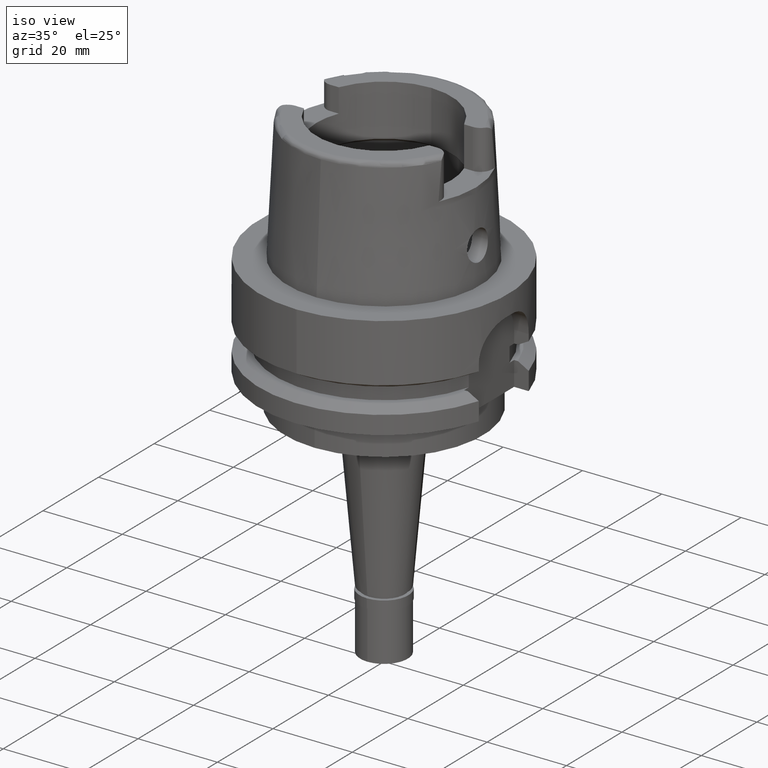
[diagram: clean part render]
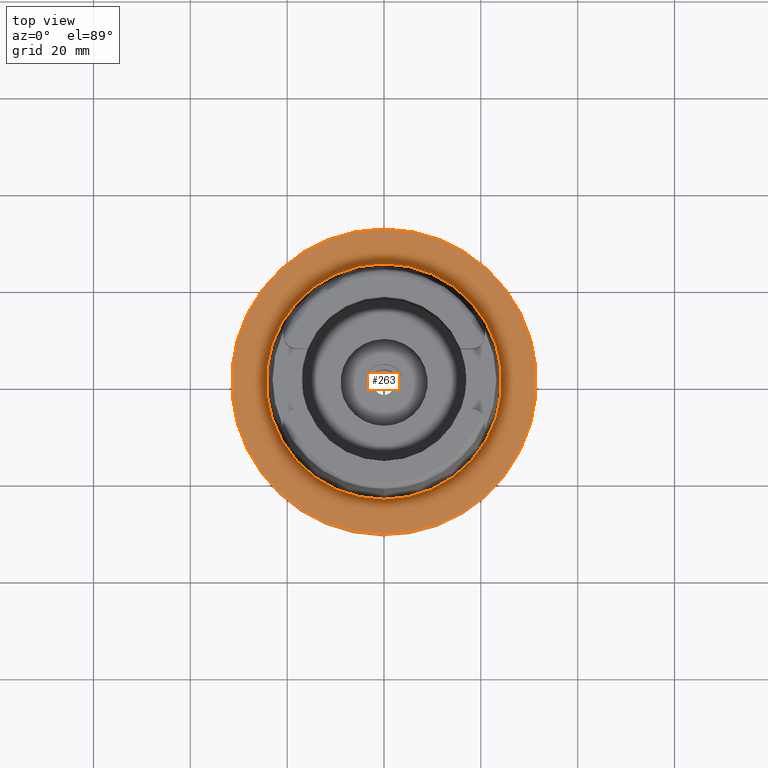
[diagram: tour spotlight — one face highlighted and labeled with its STEP entity id]
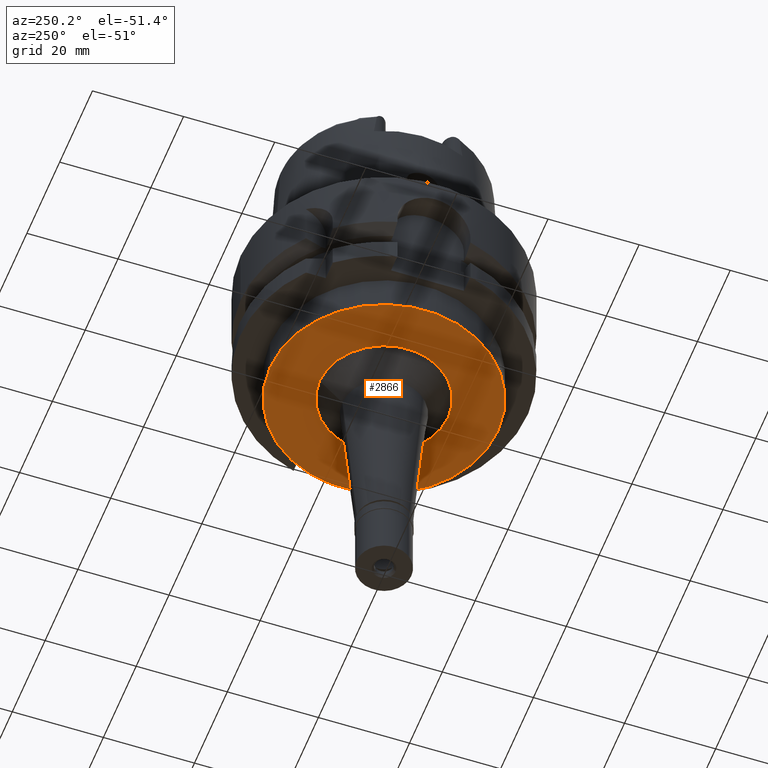
[diagram: tour spotlight — one face highlighted and labeled with its STEP entity id]
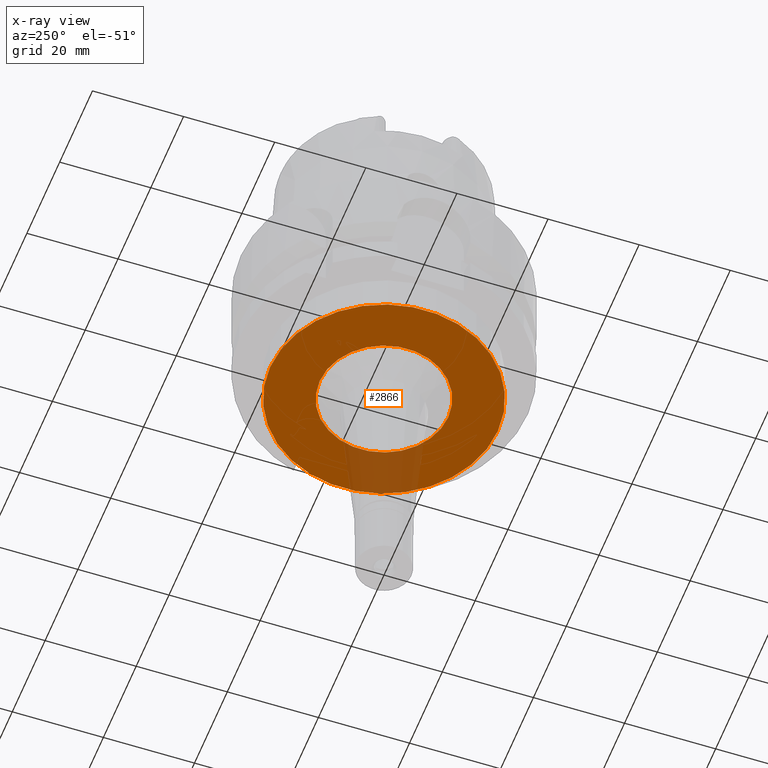
[diagram: x-ray of the same camera — body ghosted, this tour face saturated]
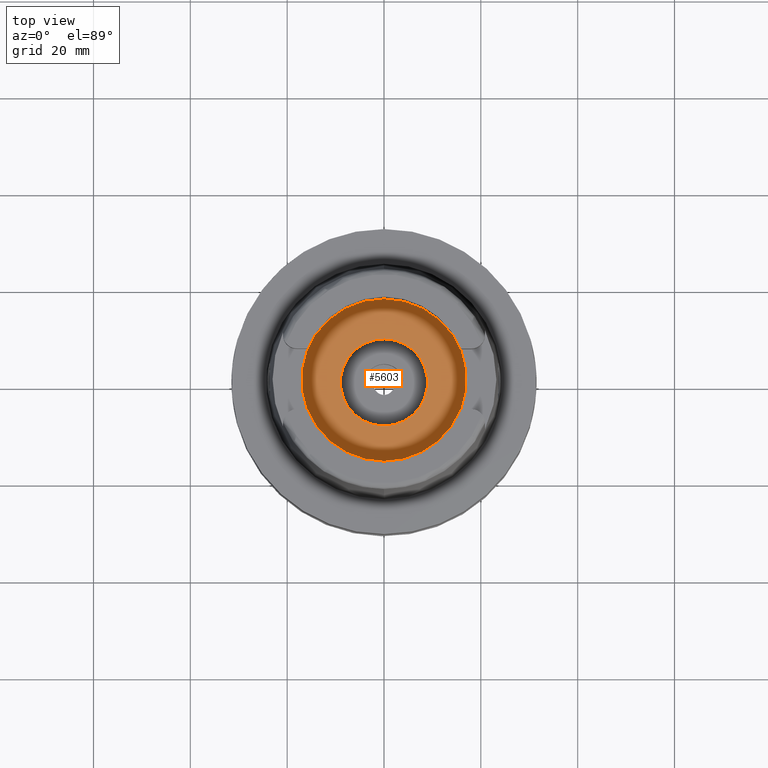
[diagram: tour spotlight — one face highlighted and labeled with its STEP entity id]
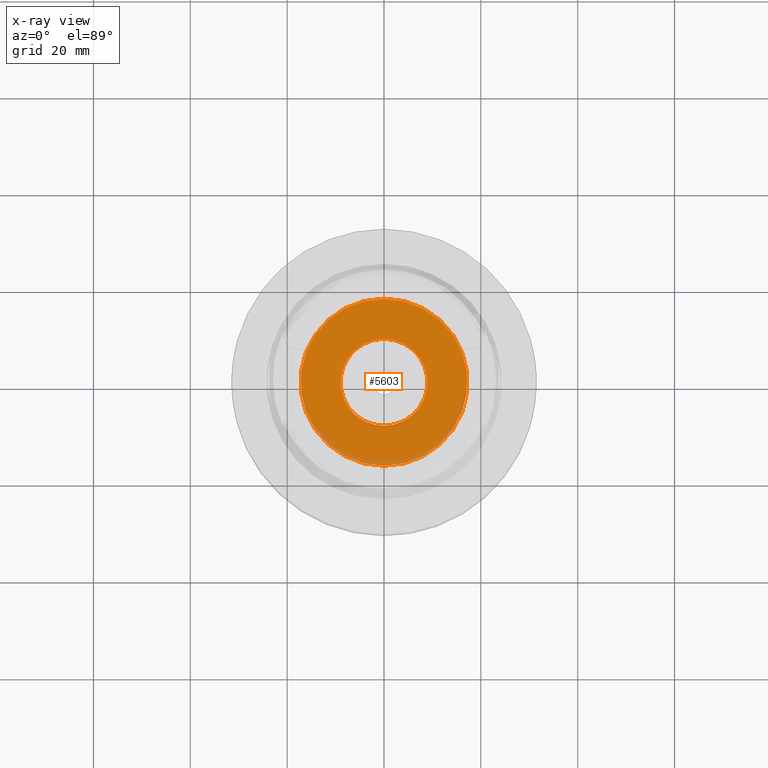
[diagram: x-ray of the same camera — body ghosted, this tour face saturated]
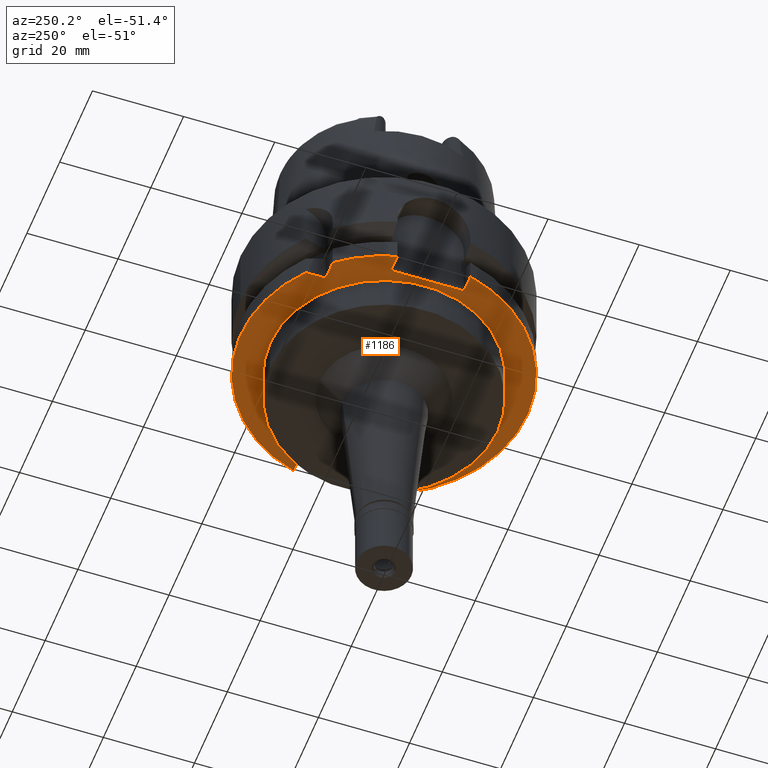
[diagram: tour spotlight — one face highlighted and labeled with its STEP entity id]
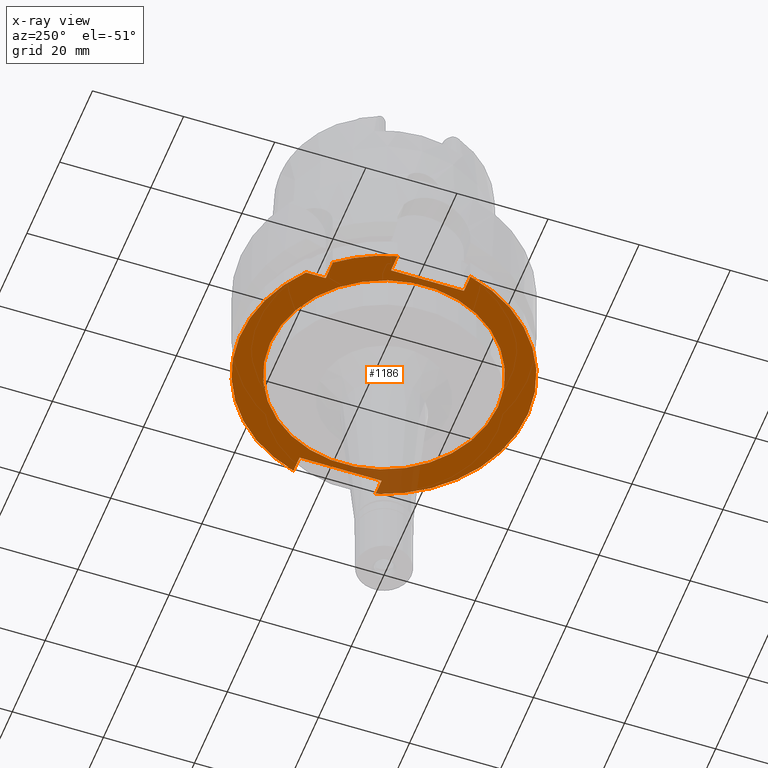
[diagram: x-ray of the same camera — body ghosted, this tour face saturated]
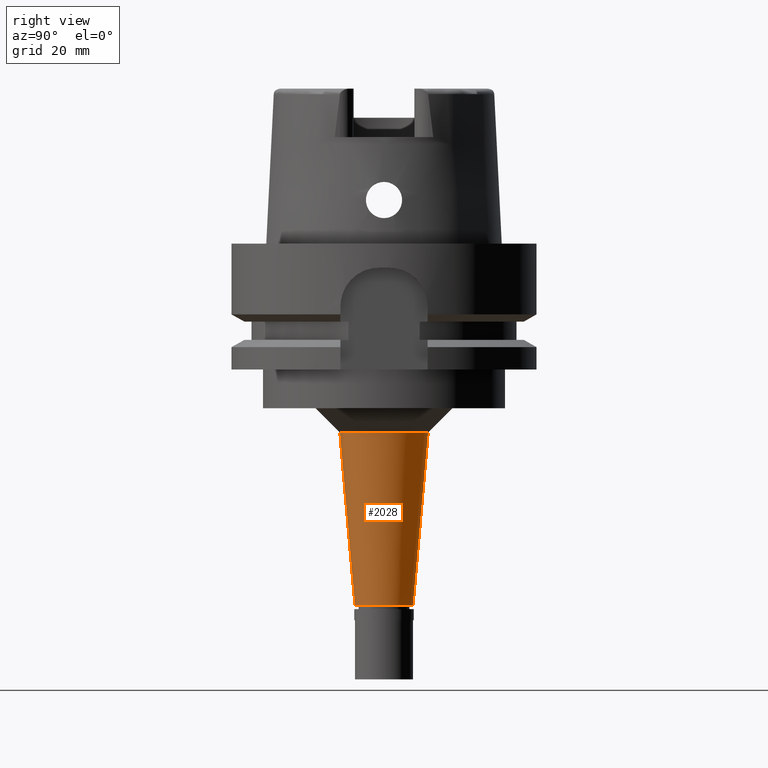
[diagram: tour spotlight — one face highlighted and labeled with its STEP entity id]
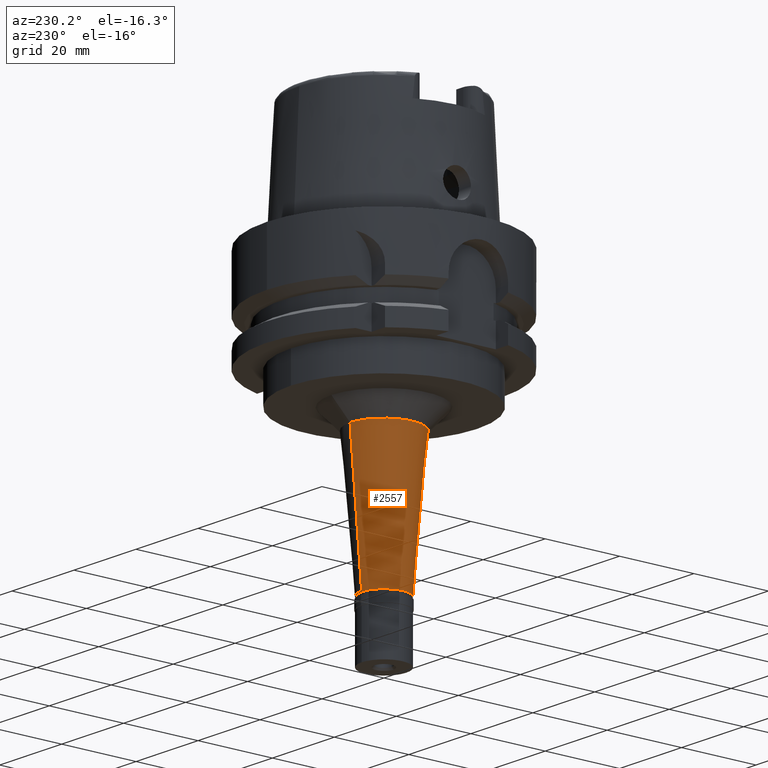
[diagram: tour spotlight — one face highlighted and labeled with its STEP entity id]
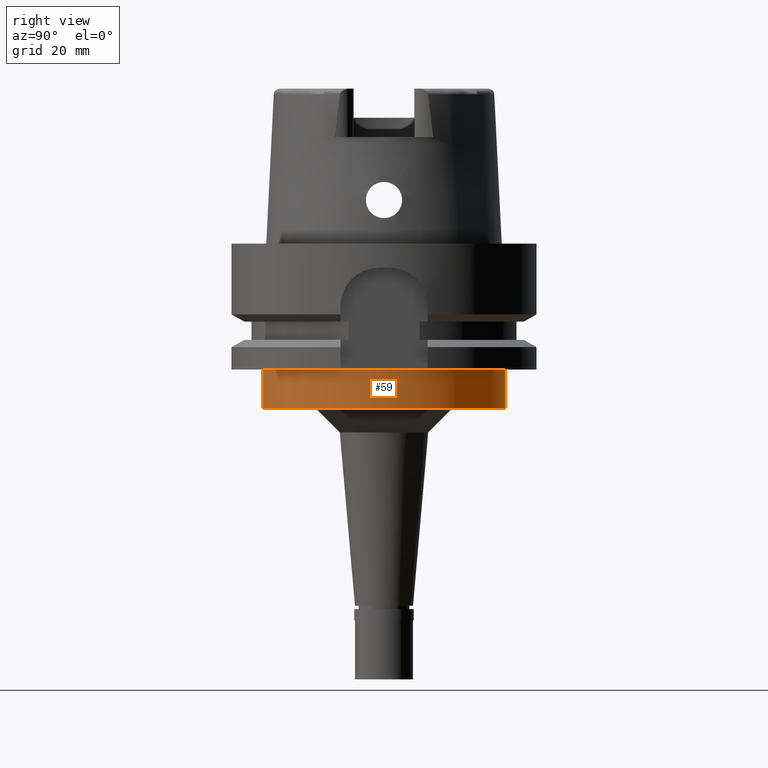
[diagram: tour spotlight — one face highlighted and labeled with its STEP entity id]
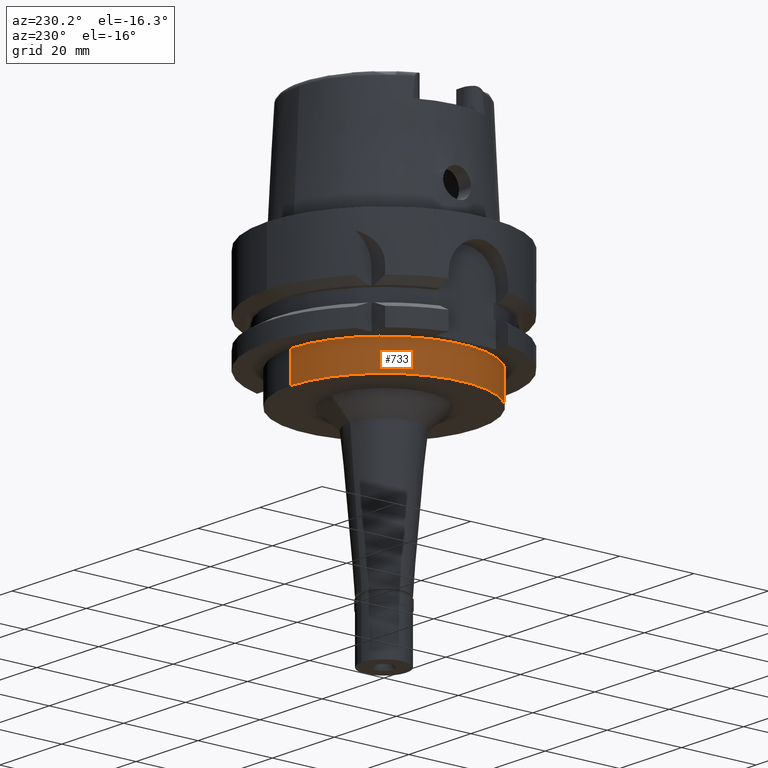
[diagram: tour spotlight — one face highlighted and labeled with its STEP entity id]
A machine part: a face-by-face anatomy tour. The part has 125 B-rep faces; the first image is the clean iso view, then the 8 largest visible faces are spotlighted one at a time (largest first), each with its STEP entity span.

Face 1 — top view, entity #263. In plain terms, the highlighted planar face has unit normal (0, 0, -1).
Definition (entity closure, byte-faithful):
#251 = ORIENTED_EDGE ( 'NONE', *, *, #5136, .F. ) ;
#263 = ADVANCED_FACE ( 'NONE', ( #5537, #4290 ), #4265, .F. ) ;
#298 = VERTEX_POINT ( 'NONE', #5626 ) ;
#458 = DIRECTION ( 'NONE',  ( 0.0000000000000000000, 0.0000000000000000000, 1.000000000000000000 ) ) ;
#484 = VERTEX_POINT ( 'NONE', #2036 ) ;
#1069 = CARTESIAN_POINT ( 'NONE',  ( 0.0000000000000000000, 1.688787936023999784E-14, -8.526512829120999020E-14 ) ) ;
#1080 = CARTESIAN_POINT ( 'NONE',  ( 0.0000000000000000000, 1.688787936023999784E-14, -8.526512829120999020E-14 ) ) ;
#1101 = EDGE_LOOP ( 'NONE', ( #3705, #251 ) ) ;
#1191 = EDGE_CURVE ( 'NONE', #5079, #2755, #2627, .T. ) ;
#1198 = CARTESIAN_POINT ( 'NONE',  ( 0.0000000000000000000, 1.413609354011999823E-14, 1.136868377215999875E-13 ) ) ;
#1364 = CARTESIAN_POINT ( 'NONE',  ( 0.0000000000000000000, 1.413609354011999823E-14, 1.136868377215999875E-13 ) ) ;
#1563 = CIRCLE ( 'NONE', #2388, 31.50000000000000000 ) ;
#1670 = AXIS2_PLACEMENT_3D ( 'NONE', #1080, #2820, #2386 ) ;
#1888 = CARTESIAN_POINT ( 'NONE',  ( 0.0000000000000000000, 24.31503482328999866, 1.136868377215999875E-13 ) ) ;
#1941 = CIRCLE ( 'NONE', #3035, 24.31503482328999866 ) ;
#2036 = CARTESIAN_POINT ( 'NONE',  ( 0.0000000000000000000, 31.50000000000000000, -8.526512829120999020E-14 ) ) ;
#2119 = CARTESIAN_POINT ( 'NONE',  ( 0.0000000000000000000, 1.224646799146999965E-14, 0.0000000000000000000 ) ) ;
#2386 = DIRECTION ( 'NONE',  ( 0.0000000000000000000, 1.000000000000000000, 0.0000000000000000000 ) ) ;
#2388 = AXIS2_PLACEMENT_3D ( 'NONE', #1069, #2436, #4152 ) ;
#2432 = AXIS2_PLACEMENT_3D ( 'NONE', #2119, #4204, #3782 ) ;
#2436 = DIRECTION ( 'NONE',  ( 0.0000000000000000000, 0.0000000000000000000, -1.000000000000000000 ) ) ;
#2461 = CARTESIAN_POINT ( 'NONE',  ( 0.0000000000000000000, -24.31503482328999866, 1.882938249763999678E-13 ) ) ;
#2627 = CIRCLE ( 'NONE', #3259, 24.31503482328999866 ) ;
#2680 = CIRCLE ( 'NONE', #1670, 31.50000000000000000 ) ;
#2755 = VERTEX_POINT ( 'NONE', #1888 ) ;
#2820 = DIRECTION ( 'NONE',  ( 0.0000000000000000000, 0.0000000000000000000, -1.000000000000000000 ) ) ;
#3035 = AXIS2_PLACEMENT_3D ( 'NONE', #1198, #3893, #3832 ) ;
#3255 = EDGE_CURVE ( 'NONE', #2755, #5079, #1941, .T. ) ;
#3259 = AXIS2_PLACEMENT_3D ( 'NONE', #1364, #458, #4828 ) ;
#3273 = ORIENTED_EDGE ( 'NONE', *, *, #1191, .F. ) ;
#3387 = EDGE_CURVE ( 'NONE', #484, #298, #2680, .T. ) ;
#3469 = EDGE_LOOP ( 'NONE', ( #3563, #3273 ) ) ;
#3563 = ORIENTED_EDGE ( 'NONE', *, *, #3255, .F. ) ;
#3705 = ORIENTED_EDGE ( 'NONE', *, *, #3387, .F. ) ;
#3782 = DIRECTION ( 'NONE',  ( 0.0000000000000000000, -1.000000000000000000, 0.0000000000000000000 ) ) ;
#3832 = DIRECTION ( 'NONE',  ( 0.0000000000000000000, 1.000000000000000000, 0.0000000000000000000 ) ) ;
#3893 = DIRECTION ( 'NONE',  ( 0.0000000000000000000, 0.0000000000000000000, 1.000000000000000000 ) ) ;
#4152 = DIRECTION ( 'NONE',  ( 0.0000000000000000000, -1.000000000000000000, 0.0000000000000000000 ) ) ;
#4204 = DIRECTION ( 'NONE',  ( 0.0000000000000000000, 0.0000000000000000000, -1.000000000000000000 ) ) ;
#4265 = PLANE ( 'NONE',  #2432 ) ;
#4290 = FACE_BOUND ( 'NONE', #3469, .T. ) ;
#4828 = DIRECTION ( 'NONE',  ( 0.0000000000000000000, -1.000000000000000000, 0.0000000000000000000 ) ) ;
#5079 = VERTEX_POINT ( 'NONE', #2461 ) ;
#5136 = EDGE_CURVE ( 'NONE', #298, #484, #1563, .T. ) ;
#5537 = FACE_OUTER_BOUND ( 'NONE', #1101, .T. ) ;
#5626 = CARTESIAN_POINT ( 'NONE',  ( 0.0000000000000000000, -31.50000000000000000, -8.526512829120999020E-14 ) ) ;

Face 2 — auxiliary view, entity #2866. An x-ray twin of the same camera follows (body ghosted, this face saturated) — the face is partly hidden behind the body. In plain terms, the highlighted planar face has unit normal (0, 0, -1).
Definition (entity closure, byte-faithful):
#168 = PLANE ( 'NONE',  #2870 ) ;
#703 = EDGE_CURVE ( 'NONE', #4720, #5641, #1707, .T. ) ;
#926 = DIRECTION ( 'NONE',  ( 0.0000000000000000000, 0.0000000000000000000, -1.000000000000000000 ) ) ;
#1018 = DIRECTION ( 'NONE',  ( 0.0000000000000000000, -1.000000000000000000, 0.0000000000000000000 ) ) ;
#1518 = CARTESIAN_POINT ( 'NONE',  ( 0.0000000000000000000, 1.688787936023999784E-14, -34.00000000000000000 ) ) ;
#1545 = DIRECTION ( 'NONE',  ( 0.0000000000000000000, 0.0000000000000000000, 1.000000000000000000 ) ) ;
#1564 = ORIENTED_EDGE ( 'NONE', *, *, #703, .F. ) ;
#1680 = AXIS2_PLACEMENT_3D ( 'NONE', #2294, #3188, #1018 ) ;
#1707 = CIRCLE ( 'NONE', #5459, 14.13209415422999982 ) ;
#1755 = CARTESIAN_POINT ( 'NONE',  ( 0.0000000000000000000, 25.00000000000000000, -34.00000000000000000 ) ) ;
#2294 = CARTESIAN_POINT ( 'NONE',  ( 0.0000000000000000000, 0.0000000000000000000, -34.00000000000000000 ) ) ;
#2366 = ORIENTED_EDGE ( 'NONE', *, *, #5324, .F. ) ;
#2465 = CARTESIAN_POINT ( 'NONE',  ( 0.0000000000000000000, -25.00000000000000000, -34.00000000000000000 ) ) ;
#2480 = DIRECTION ( 'NONE',  ( 0.0000000000000000000, 1.000000000000000000, 0.0000000000000000000 ) ) ;
#2564 = EDGE_LOOP ( 'NONE', ( #5549, #2366 ) ) ;
#2663 = VERTEX_POINT ( 'NONE', #2465 ) ;
#2792 = AXIS2_PLACEMENT_3D ( 'NONE', #3037, #4323, #4791 ) ;
#2829 = EDGE_LOOP ( 'NONE', ( #1564, #4325 ) ) ;
#2866 = ADVANCED_FACE ( 'NONE', ( #4520, #4407 ), #168, .T. ) ;
#2870 = AXIS2_PLACEMENT_3D ( 'NONE', #4037, #926, #3550 ) ;
#3037 = CARTESIAN_POINT ( 'NONE',  ( 0.0000000000000000000, 1.688787936023999784E-14, -34.00000000000000000 ) ) ;
#3188 = DIRECTION ( 'NONE',  ( 0.0000000000000000000, 0.0000000000000000000, -1.000000000000000000 ) ) ;
#3257 = DIRECTION ( 'NONE',  ( 0.0000000000000000000, -1.000000000000000000, 0.0000000000000000000 ) ) ;
#3550 = DIRECTION ( 'NONE',  ( 0.0000000000000000000, -1.000000000000000000, 0.0000000000000000000 ) ) ;
#3620 = CARTESIAN_POINT ( 'NONE',  ( 0.0000000000000000000, -14.13209415422999982, -34.00000000000000000 ) ) ;
#3769 = EDGE_CURVE ( 'NONE', #5641, #4720, #4059, .T. ) ;
#3854 = DIRECTION ( 'NONE',  ( 0.0000000000000000000, 0.0000000000000000000, -1.000000000000000000 ) ) ;
#4037 = CARTESIAN_POINT ( 'NONE',  ( 0.0000000000000000000, 0.0000000000000000000, -34.00000000000000000 ) ) ;
#4059 = CIRCLE ( 'NONE', #1680, 14.13209415422999982 ) ;
#4125 = AXIS2_PLACEMENT_3D ( 'NONE', #1518, #1545, #3257 ) ;
#4323 = DIRECTION ( 'NONE',  ( 0.0000000000000000000, 0.0000000000000000000, 1.000000000000000000 ) ) ;
#4325 = ORIENTED_EDGE ( 'NONE', *, *, #3769, .F. ) ;
#4407 = FACE_BOUND ( 'NONE', #2829, .T. ) ;
#4520 = FACE_OUTER_BOUND ( 'NONE', #2564, .T. ) ;
#4656 = CARTESIAN_POINT ( 'NONE',  ( 0.0000000000000000000, 0.0000000000000000000, -34.00000000000000000 ) ) ;
#4720 = VERTEX_POINT ( 'NONE', #5508 ) ;
#4791 = DIRECTION ( 'NONE',  ( 0.0000000000000000000, 1.000000000000000000, 0.0000000000000000000 ) ) ;
#4836 = EDGE_CURVE ( 'NONE', #4866, #2663, #5268, .T. ) ;
#4866 = VERTEX_POINT ( 'NONE', #1755 ) ;
#5226 = CIRCLE ( 'NONE', #4125, 25.00000000000000000 ) ;
#5268 = CIRCLE ( 'NONE', #2792, 25.00000000000000000 ) ;
#5324 = EDGE_CURVE ( 'NONE', #2663, #4866, #5226, .T. ) ;
#5459 = AXIS2_PLACEMENT_3D ( 'NONE', #4656, #3854, #2480 ) ;
#5508 = CARTESIAN_POINT ( 'NONE',  ( 0.0000000000000000000, 14.13209415422999982, -34.00000000000000000 ) ) ;
#5549 = ORIENTED_EDGE ( 'NONE', *, *, #4836, .F. ) ;
#5641 = VERTEX_POINT ( 'NONE', #3620 ) ;

Face 3 — top view, entity #5603. An x-ray twin of the same camera follows (body ghosted, this face saturated) — the face is partly hidden behind the body. In plain terms, the highlighted planar face has unit normal (0, 0, -1).
Definition (entity closure, byte-faithful):
#87 = ORIENTED_EDGE ( 'NONE', *, *, #466, .F. ) ;
#163 = DIRECTION ( 'NONE',  ( 0.0000000000000000000, 0.0000000000000000000, 1.000000000000000000 ) ) ;
#466 = EDGE_CURVE ( 'NONE', #851, #3715, #4252, .T. ) ;
#804 = CIRCLE ( 'NONE', #4732, 9.000000000000000000 ) ;
#851 = VERTEX_POINT ( 'NONE', #4306 ) ;
#951 = EDGE_CURVE ( 'NONE', #4882, #5383, #2805, .T. ) ;
#1159 = ORIENTED_EDGE ( 'NONE', *, *, #951, .F. ) ;
#1474 = CARTESIAN_POINT ( 'NONE',  ( 0.0000000000000000000, 1.688787936023999784E-14, -9.950000000000001066 ) ) ;
#1503 = FACE_OUTER_BOUND ( 'NONE', #2040, .T. ) ;
#1571 = EDGE_CURVE ( 'NONE', #5383, #4882, #804, .T. ) ;
#1841 = CARTESIAN_POINT ( 'NONE',  ( 0.0000000000000000000, 1.102794442632000083E-14, -9.950000000000001066 ) ) ;
#1953 = CARTESIAN_POINT ( 'NONE',  ( 0.0000000000000000000, -17.25000000000000000, -9.950000000000001066 ) ) ;
#1968 = CIRCLE ( 'NONE', #2335, 17.25000000000000000 ) ;
#2040 = EDGE_LOOP ( 'NONE', ( #87, #2400 ) ) ;
#2160 = AXIS2_PLACEMENT_3D ( 'NONE', #1474, #4264, #2949 ) ;
#2247 = PLANE ( 'NONE',  #5044 ) ;
#2335 = AXIS2_PLACEMENT_3D ( 'NONE', #2442, #4618, #5045 ) ;
#2400 = ORIENTED_EDGE ( 'NONE', *, *, #4727, .F. ) ;
#2442 = CARTESIAN_POINT ( 'NONE',  ( 0.0000000000000000000, 1.688787936023999784E-14, -9.950000000000001066 ) ) ;
#2805 = CIRCLE ( 'NONE', #3806, 9.000000000000000000 ) ;
#2949 = DIRECTION ( 'NONE',  ( 0.0000000000000000000, 1.000000000000000000, 0.0000000000000000000 ) ) ;
#3715 = VERTEX_POINT ( 'NONE', #1953 ) ;
#3806 = AXIS2_PLACEMENT_3D ( 'NONE', #5436, #4937, #5379 ) ;
#3874 = CARTESIAN_POINT ( 'NONE',  ( 0.0000000000000000000, -9.000000000000000000, -9.950000000000001066 ) ) ;
#3997 = DIRECTION ( 'NONE',  ( 0.0000000000000000000, 0.0000000000000000000, -1.000000000000000000 ) ) ;
#4145 = DIRECTION ( 'NONE',  ( 0.0000000000000000000, 1.000000000000000000, 0.0000000000000000000 ) ) ;
#4252 = CIRCLE ( 'NONE', #2160, 17.25000000000000000 ) ;
#4264 = DIRECTION ( 'NONE',  ( 0.0000000000000000000, 0.0000000000000000000, -1.000000000000000000 ) ) ;
#4306 = CARTESIAN_POINT ( 'NONE',  ( 0.0000000000000000000, 17.25000000000000000, -9.950000000000001066 ) ) ;
#4530 = FACE_BOUND ( 'NONE', #4966, .T. ) ;
#4547 = ORIENTED_EDGE ( 'NONE', *, *, #1571, .F. ) ;
#4567 = CARTESIAN_POINT ( 'NONE',  ( 0.0000000000000000000, 1.688787936023999784E-14, -9.950000000000001066 ) ) ;
#4618 = DIRECTION ( 'NONE',  ( 0.0000000000000000000, 0.0000000000000000000, -1.000000000000000000 ) ) ;
#4716 = CARTESIAN_POINT ( 'NONE',  ( 0.0000000000000000000, 9.000000000000000000, -9.950000000000001066 ) ) ;
#4727 = EDGE_CURVE ( 'NONE', #3715, #851, #1968, .T. ) ;
#4732 = AXIS2_PLACEMENT_3D ( 'NONE', #4567, #163, #4145 ) ;
#4882 = VERTEX_POINT ( 'NONE', #3874 ) ;
#4933 = DIRECTION ( 'NONE',  ( 0.0000000000000000000, -1.000000000000000000, 0.0000000000000000000 ) ) ;
#4937 = DIRECTION ( 'NONE',  ( 0.0000000000000000000, 0.0000000000000000000, 1.000000000000000000 ) ) ;
#4966 = EDGE_LOOP ( 'NONE', ( #4547, #1159 ) ) ;
#5044 = AXIS2_PLACEMENT_3D ( 'NONE', #1841, #3997, #4933 ) ;
#5045 = DIRECTION ( 'NONE',  ( 0.0000000000000000000, -1.000000000000000000, 0.0000000000000000000 ) ) ;
#5379 = DIRECTION ( 'NONE',  ( 0.0000000000000000000, -1.000000000000000000, 0.0000000000000000000 ) ) ;
#5383 = VERTEX_POINT ( 'NONE', #4716 ) ;
#5436 = CARTESIAN_POINT ( 'NONE',  ( 0.0000000000000000000, 1.688787936023999784E-14, -9.950000000000001066 ) ) ;
#5603 = ADVANCED_FACE ( 'NONE', ( #1503, #4530 ), #2247, .F. ) ;

Face 4 — auxiliary view, entity #1186. An x-ray twin of the same camera follows (body ghosted, this face saturated) — the face is partly hidden behind the body. In plain terms, the highlighted planar face has unit normal (0, 0, -1).
Definition (entity closure, byte-faithful):
#4 = FACE_BOUND ( 'NONE', #4705, .T. ) ;
#16 = DIRECTION ( 'NONE',  ( -1.000000000000000000, -7.082459574769999312E-14, 0.0000000000000000000 ) ) ;
#32 = LINE ( 'NONE', #1304, #5094 ) ;
#70 = CARTESIAN_POINT ( 'NONE',  ( 0.0000000000000000000, 1.688787936023999784E-14, -26.00000000000000000 ) ) ;
#85 = AXIS2_PLACEMENT_3D ( 'NONE', #3534, #2621, #5285 ) ;
#108 = DIRECTION ( 'NONE',  ( 0.0000000000000000000, 1.000000000000000000, 0.0000000000000000000 ) ) ;
#116 = LINE ( 'NONE', #4887, #4790 ) ;
#154 = VECTOR ( 'NONE', #108, 1000.000000000000000 ) ;
#176 = DIRECTION ( 'NONE',  ( 0.0000000000000000000, 1.000000000000000000, 0.0000000000000000000 ) ) ;
#270 = CARTESIAN_POINT ( 'NONE',  ( 0.0000000000000000000, 1.688787936023999784E-14, -26.00000000000000000 ) ) ;
#327 = EDGE_CURVE ( 'NONE', #3501, #1514, #1344, .T. ) ;
#329 = CARTESIAN_POINT ( 'NONE',  ( -20.00000000000000000, 20.00000000000000000, -26.00000000000000000 ) ) ;
#363 = EDGE_CURVE ( 'NONE', #1384, #2494, #5124, .T. ) ;
#389 = LINE ( 'NONE', #2122, #2477 ) ;
#421 = DIRECTION ( 'NONE',  ( 0.0000000000000000000, -1.000000000000000000, 0.0000000000000000000 ) ) ;
#437 = CIRCLE ( 'NONE', #611, 25.00000000000000000 ) ;
#601 = EDGE_CURVE ( 'NONE', #4327, #4848, #437, .T. ) ;
#611 = AXIS2_PLACEMENT_3D ( 'NONE', #270, #4599, #2426 ) ;
#612 = DIRECTION ( 'NONE',  ( -0.7725773665802099233, 0.6349206349206079070, 0.0000000000000000000 ) ) ;
#755 = EDGE_LOOP ( 'NONE', ( #2191, #900, #1562, #2855, #2292, #3190, #3731, #3324, #3057, #2749, #2298 ) ) ;
#808 = EDGE_CURVE ( 'NONE', #4848, #4327, #2164, .T. ) ;
#879 = CARTESIAN_POINT ( 'NONE',  ( 0.0000000000000000000, -25.00000000000000000, -26.00000000000000000 ) ) ;
#900 = ORIENTED_EDGE ( 'NONE', *, *, #4865, .T. ) ;
#939 = CARTESIAN_POINT ( 'NONE',  ( 26.50000000000000000, 9.000000000000000000, -26.00000000000000000 ) ) ;
#967 = CARTESIAN_POINT ( 'NONE',  ( -30.46719547316000032, 8.000000000000000000, -26.00000000000000000 ) ) ;
#973 = DIRECTION ( 'NONE',  ( 0.0000000000000000000, 1.000000000000000000, 0.0000000000000000000 ) ) ;
#996 = LINE ( 'NONE', #4446, #2413 ) ;
#1068 = VECTOR ( 'NONE', #3402, 1000.000000000000000 ) ;
#1153 = EDGE_CURVE ( 'NONE', #2998, #3660, #32, .T. ) ;
#1174 = CARTESIAN_POINT ( 'NONE',  ( 26.50000000000000000, -9.000000000000000000, -26.00000000000000000 ) ) ;
#1186 = ADVANCED_FACE ( 'NONE', ( #3047, #4 ), #3415, .T. ) ;
#1268 = CARTESIAN_POINT ( 'NONE',  ( 0.0000000000000000000, 1.688787936023999784E-14, -26.00000000000000000 ) ) ;
#1304 = CARTESIAN_POINT ( 'NONE',  ( -20.00000000000000000, 20.00000000000000000, -26.00000000000000000 ) ) ;
#1330 = DIRECTION ( 'NONE',  ( -1.000000000000000000, 6.937919583448999879E-14, 0.0000000000000000000 ) ) ;
#1344 = CIRCLE ( 'NONE', #4532, 31.50000000000000000 ) ;
#1384 = VERTEX_POINT ( 'NONE', #5097 ) ;
#1389 = VERTEX_POINT ( 'NONE', #1174 ) ;
#1443 = VECTOR ( 'NONE', #16, 1000.000000000000000 ) ;
#1497 = EDGE_CURVE ( 'NONE', #1514, #1389, #3921, .T. ) ;
#1514 = VERTEX_POINT ( 'NONE', #2852 ) ;
#1523 = CARTESIAN_POINT ( 'NONE',  ( 0.0000000000000000000, 25.00000000000000000, -26.00000000000000000 ) ) ;
#1562 = ORIENTED_EDGE ( 'NONE', *, *, #2202, .F. ) ;
#1590 = CARTESIAN_POINT ( 'NONE',  ( -30.46719547316000032, -8.000000000000000000, -26.00000000000000000 ) ) ;
#1605 = DIRECTION ( 'NONE',  ( 0.0000000000000000000, 0.0000000000000000000, 1.000000000000000000 ) ) ;
#1660 = CARTESIAN_POINT ( 'NONE',  ( -26.50000000000000000, 8.000000000000000000, -26.00000000000000000 ) ) ;
#1732 = CARTESIAN_POINT ( 'NONE',  ( -24.33618704727619786, 19.99999999999964828, -26.00000000000000000 ) ) ;
#1745 = CARTESIAN_POINT ( 'NONE',  ( 30.18691769625000276, -9.000000000000000000, -26.00000000000000000 ) ) ;
#1898 = DIRECTION ( 'NONE',  ( 0.0000000000000000000, 0.0000000000000000000, 1.000000000000000000 ) ) ;
#2100 = VERTEX_POINT ( 'NONE', #3735 ) ;
#2122 = CARTESIAN_POINT ( 'NONE',  ( 30.18691769625000276, 9.000000000000000000, -26.00000000000000000 ) ) ;
#2142 = VERTEX_POINT ( 'NONE', #5170 ) ;
#2164 = CIRCLE ( 'NONE', #5181, 25.00000000000000000 ) ;
#2191 = ORIENTED_EDGE ( 'NONE', *, *, #4683, .F. ) ;
#2202 = EDGE_CURVE ( 'NONE', #1389, #5510, #116, .T. ) ;
#2292 = ORIENTED_EDGE ( 'NONE', *, *, #327, .F. ) ;
#2298 = ORIENTED_EDGE ( 'NONE', *, *, #3287, .T. ) ;
#2413 = VECTOR ( 'NONE', #2735, 1000.000000000000000 ) ;
#2426 = DIRECTION ( 'NONE',  ( 0.0000000000000000000, 1.000000000000000000, 0.0000000000000000000 ) ) ;
#2477 = VECTOR ( 'NONE', #1330, 1000.000000000000000 ) ;
#2494 = VERTEX_POINT ( 'NONE', #967 ) ;
#2621 = DIRECTION ( 'NONE',  ( 0.0000000000000000000, 0.0000000000000000000, -1.000000000000000000 ) ) ;
#2735 = DIRECTION ( 'NONE',  ( -1.000000000000000000, -8.686570378870999660E-14, 0.0000000000000000000 ) ) ;
#2749 = ORIENTED_EDGE ( 'NONE', *, *, #1153, .F. ) ;
#2791 = DIRECTION ( 'NONE',  ( 1.540316790609000194E-13, 1.000000000000000000, 0.0000000000000000000 ) ) ;
#2852 = CARTESIAN_POINT ( 'NONE',  ( 30.18691769625000276, -9.000000000000000000, -26.00000000000000000 ) ) ;
#2855 = ORIENTED_EDGE ( 'NONE', *, *, #1497, .F. ) ;
#2998 = VERTEX_POINT ( 'NONE', #329 ) ;
#3006 = DIRECTION ( 'NONE',  ( 0.0000000000000000000, 0.0000000000000000000, 1.000000000000000000 ) ) ;
#3047 = FACE_OUTER_BOUND ( 'NONE', #755, .T. ) ;
#3057 = ORIENTED_EDGE ( 'NONE', *, *, #5142, .F. ) ;
#3180 = LINE ( 'NONE', #3551, #154 ) ;
#3190 = ORIENTED_EDGE ( 'NONE', *, *, #3844, .F. ) ;
#3287 = EDGE_CURVE ( 'NONE', #2998, #2100, #3430, .T. ) ;
#3324 = ORIENTED_EDGE ( 'NONE', *, *, #363, .T. ) ;
#3402 = DIRECTION ( 'NONE',  ( -1.000000000000000000, 8.776122650817999518E-14, 0.0000000000000000000 ) ) ;
#3415 = PLANE ( 'NONE',  #85 ) ;
#3430 = LINE ( 'NONE', #5183, #4220 ) ;
#3501 = VERTEX_POINT ( 'NONE', #1590 ) ;
#3534 = CARTESIAN_POINT ( 'NONE',  ( 0.0000000000000000000, 0.0000000000000000000, -26.00000000000000000 ) ) ;
#3551 = CARTESIAN_POINT ( 'NONE',  ( -26.50000000000000000, -8.000000000000000000, -26.00000000000000000 ) ) ;
#3660 = VERTEX_POINT ( 'NONE', #1732 ) ;
#3731 = ORIENTED_EDGE ( 'NONE', *, *, #4227, .T. ) ;
#3735 = CARTESIAN_POINT ( 'NONE',  ( -20.00000000000000000, 24.33618704727999926, -26.00000000000000000 ) ) ;
#3784 = CARTESIAN_POINT ( 'NONE',  ( -26.50000000000000000, -8.000000000000000000, -26.00000000000000000 ) ) ;
#3844 = EDGE_CURVE ( 'NONE', #4080, #3501, #996, .T. ) ;
#3848 = DIRECTION ( 'NONE',  ( -1.000000000000000000, -1.532123616190999905E-13, 0.0000000000000000000 ) ) ;
#3921 = LINE ( 'NONE', #1745, #1443 ) ;
#4075 = CARTESIAN_POINT ( 'NONE',  ( 0.0000000000000000000, 1.688787936023999784E-14, -26.00000000000000000 ) ) ;
#4080 = VERTEX_POINT ( 'NONE', #3784 ) ;
#4220 = VECTOR ( 'NONE', #2791, 1000.000000000000000 ) ;
#4227 = EDGE_CURVE ( 'NONE', #4080, #1384, #3180, .T. ) ;
#4327 = VERTEX_POINT ( 'NONE', #1523 ) ;
#4446 = CARTESIAN_POINT ( 'NONE',  ( -26.50000000000000000, -8.000000000000000000, -26.00000000000000000 ) ) ;
#4532 = AXIS2_PLACEMENT_3D ( 'NONE', #1268, #3006, #421 ) ;
#4599 = DIRECTION ( 'NONE',  ( 0.0000000000000000000, 0.0000000000000000000, -1.000000000000000000 ) ) ;
#4617 = CIRCLE ( 'NONE', #4981, 31.50000000000000000 ) ;
#4683 = EDGE_CURVE ( 'NONE', #2142, #2100, #4617, .T. ) ;
#4705 = EDGE_LOOP ( 'NONE', ( #5405, #5256 ) ) ;
#4769 = AXIS2_PLACEMENT_3D ( 'NONE', #5532, #1605, #612 ) ;
#4790 = VECTOR ( 'NONE', #973, 1000.000000000000000 ) ;
#4848 = VERTEX_POINT ( 'NONE', #879 ) ;
#4865 = EDGE_CURVE ( 'NONE', #2142, #5510, #389, .T. ) ;
#4887 = CARTESIAN_POINT ( 'NONE',  ( 26.50000000000000000, -9.000000000000000000, -26.00000000000000000 ) ) ;
#4943 = CIRCLE ( 'NONE', #4769, 31.50000000000000711 ) ;
#4981 = AXIS2_PLACEMENT_3D ( 'NONE', #4075, #1898, #176 ) ;
#5094 = VECTOR ( 'NONE', #3848, 1000.000000000000000 ) ;
#5097 = CARTESIAN_POINT ( 'NONE',  ( -26.50000000000000000, 8.000000000000000000, -26.00000000000000000 ) ) ;
#5124 = LINE ( 'NONE', #1660, #1068 ) ;
#5142 = EDGE_CURVE ( 'NONE', #3660, #2494, #4943, .T. ) ;
#5170 = CARTESIAN_POINT ( 'NONE',  ( 30.18691769625000276, 9.000000000000000000, -26.00000000000000000 ) ) ;
#5181 = AXIS2_PLACEMENT_3D ( 'NONE', #70, #5231, #5202 ) ;
#5183 = CARTESIAN_POINT ( 'NONE',  ( -20.00000000000000000, 20.00000000000000000, -26.00000000000000000 ) ) ;
#5202 = DIRECTION ( 'NONE',  ( 0.0000000000000000000, -1.000000000000000000, 0.0000000000000000000 ) ) ;
#5231 = DIRECTION ( 'NONE',  ( 0.0000000000000000000, 0.0000000000000000000, -1.000000000000000000 ) ) ;
#5256 = ORIENTED_EDGE ( 'NONE', *, *, #808, .F. ) ;
#5285 = DIRECTION ( 'NONE',  ( 0.0000000000000000000, -1.000000000000000000, 0.0000000000000000000 ) ) ;
#5405 = ORIENTED_EDGE ( 'NONE', *, *, #601, .F. ) ;
#5510 = VERTEX_POINT ( 'NONE', #939 ) ;
#5532 = CARTESIAN_POINT ( 'NONE',  ( 0.0000000000000000000, 1.688787936023999784E-14, -26.00000000000000000 ) ) ;

Face 5 — right view, entity #2028. In plain terms, the highlighted conical surface has half-angle 5 deg.
Definition (entity closure, byte-faithful):
#28 = CARTESIAN_POINT ( 'NONE',  ( 0.0000000000000000000, -6.000000000000000000, -74.80000000000001137 ) ) ;
#125 = DIRECTION ( 'NONE',  ( 0.0000000000000000000, 0.0000000000000000000, 1.000000000000000000 ) ) ;
#360 = EDGE_CURVE ( 'NONE', #2239, #1594, #2522, .T. ) ;
#545 = CARTESIAN_POINT ( 'NONE',  ( 0.0000000000000000000, -9.132094154229001504, -39.00000000000000000 ) ) ;
#771 = AXIS2_PLACEMENT_3D ( 'NONE', #2338, #125, #3597 ) ;
#849 = ORIENTED_EDGE ( 'NONE', *, *, #3804, .F. ) ;
#940 = EDGE_LOOP ( 'NONE', ( #5607, #2625, #2979, #849 ) ) ;
#1233 = EDGE_CURVE ( 'NONE', #2067, #1716, #4910, .T. ) ;
#1531 = DIRECTION ( 'NONE',  ( 0.0000000000000000000, -0.08715574274767391716, -0.9961946980917442129 ) ) ;
#1594 = VERTEX_POINT ( 'NONE', #3717 ) ;
#1639 = CARTESIAN_POINT ( 'NONE',  ( 0.0000000000000000000, 0.0000000000000000000, -74.80000000000001137 ) ) ;
#1716 = VERTEX_POINT ( 'NONE', #4942 ) ;
#2028 = ADVANCED_FACE ( 'NONE', ( #5027 ), #4056, .T. ) ;
#2067 = VERTEX_POINT ( 'NONE', #5546 ) ;
#2084 = LINE ( 'NONE', #545, #2310 ) ;
#2239 = VERTEX_POINT ( 'NONE', #28 ) ;
#2310 = VECTOR ( 'NONE', #5119, 1000.000000000000000 ) ;
#2338 = CARTESIAN_POINT ( 'NONE',  ( 0.0000000000000000000, 0.0000000000000000000, -56.89999999999999858 ) ) ;
#2492 = DIRECTION ( 'NONE',  ( 0.0000000000000000000, 0.0000000000000000000, 1.000000000000000000 ) ) ;
#2522 = CIRCLE ( 'NONE', #3533, 6.000000000000000000 ) ;
#2565 = DIRECTION ( 'NONE',  ( 0.0000000000000000000, 0.0000000000000000000, 1.000000000000000000 ) ) ;
#2625 = ORIENTED_EDGE ( 'NONE', *, *, #3250, .T. ) ;
#2757 = CARTESIAN_POINT ( 'NONE',  ( 0.0000000000000000000, 9.132094154229001504, -39.00000000000000000 ) ) ;
#2979 = ORIENTED_EDGE ( 'NONE', *, *, #360, .T. ) ;
#3250 = EDGE_CURVE ( 'NONE', #2067, #2239, #2084, .T. ) ;
#3533 = AXIS2_PLACEMENT_3D ( 'NONE', #1639, #2492, #5101 ) ;
#3597 = DIRECTION ( 'NONE',  ( 0.0000000000000000000, 1.000000000000000000, 0.0000000000000000000 ) ) ;
#3717 = CARTESIAN_POINT ( 'NONE',  ( 0.0000000000000000000, 6.000000000000000000, -74.80000000000001137 ) ) ;
#3804 = EDGE_CURVE ( 'NONE', #1716, #1594, #4129, .T. ) ;
#3998 = AXIS2_PLACEMENT_3D ( 'NONE', #5225, #2565, #4301 ) ;
#4056 = CONICAL_SURFACE ( 'NONE', #771, 7.566047077114000707, 0.08726646259969973729 ) ;
#4129 = LINE ( 'NONE', #2757, #4232 ) ;
#4232 = VECTOR ( 'NONE', #1531, 1000.000000000000000 ) ;
#4301 = DIRECTION ( 'NONE',  ( 0.0000000000000000000, -1.000000000000000000, 0.0000000000000000000 ) ) ;
#4910 = CIRCLE ( 'NONE', #3998, 9.132094154227999638 ) ;
#4942 = CARTESIAN_POINT ( 'NONE',  ( 0.0000000000000000000, 9.132094154229001504, -39.00000000000000000 ) ) ;
#5027 = FACE_OUTER_BOUND ( 'NONE', #940, .T. ) ;
#5101 = DIRECTION ( 'NONE',  ( 0.0000000000000000000, -1.000000000000000000, 0.0000000000000000000 ) ) ;
#5119 = DIRECTION ( 'NONE',  ( 0.0000000000000000000, 0.08715574274767391716, -0.9961946980917442129 ) ) ;
#5225 = CARTESIAN_POINT ( 'NONE',  ( 0.0000000000000000000, 0.0000000000000000000, -39.00000000000000000 ) ) ;
#5546 = CARTESIAN_POINT ( 'NONE',  ( 0.0000000000000000000, -9.132094154229001504, -39.00000000000000000 ) ) ;
#5607 = ORIENTED_EDGE ( 'NONE', *, *, #1233, .F. ) ;

Face 6 — auxiliary view, entity #2557. In plain terms, the highlighted conical surface has half-angle 5 deg.
Definition (entity closure, byte-faithful):
#28 = CARTESIAN_POINT ( 'NONE',  ( 0.0000000000000000000, -6.000000000000000000, -74.80000000000001137 ) ) ;
#545 = CARTESIAN_POINT ( 'NONE',  ( 0.0000000000000000000, -9.132094154229001504, -39.00000000000000000 ) ) ;
#812 = ORIENTED_EDGE ( 'NONE', *, *, #3250, .F. ) ;
#857 = CONICAL_SURFACE ( 'NONE', #4045, 7.566047077114000707, 0.08726646259969973729 ) ;
#1265 = CARTESIAN_POINT ( 'NONE',  ( 0.0000000000000000000, 0.0000000000000000000, -39.00000000000000000 ) ) ;
#1417 = CARTESIAN_POINT ( 'NONE',  ( 0.0000000000000000000, 0.0000000000000000000, -74.80000000000001137 ) ) ;
#1478 = AXIS2_PLACEMENT_3D ( 'NONE', #1265, #3002, #4315 ) ;
#1531 = DIRECTION ( 'NONE',  ( 0.0000000000000000000, -0.08715574274767391716, -0.9961946980917442129 ) ) ;
#1594 = VERTEX_POINT ( 'NONE', #3717 ) ;
#1716 = VERTEX_POINT ( 'NONE', #4942 ) ;
#1895 = CARTESIAN_POINT ( 'NONE',  ( 0.0000000000000000000, 0.0000000000000000000, -56.89999999999999858 ) ) ;
#2009 = ORIENTED_EDGE ( 'NONE', *, *, #3804, .T. ) ;
#2067 = VERTEX_POINT ( 'NONE', #5546 ) ;
#2084 = LINE ( 'NONE', #545, #2310 ) ;
#2239 = VERTEX_POINT ( 'NONE', #28 ) ;
#2291 = CIRCLE ( 'NONE', #1478, 9.132094154229001504 ) ;
#2310 = VECTOR ( 'NONE', #5119, 1000.000000000000000 ) ;
#2451 = EDGE_CURVE ( 'NONE', #1594, #2239, #5331, .T. ) ;
#2452 = EDGE_LOOP ( 'NONE', ( #3158, #812, #3091, #2009 ) ) ;
#2557 = ADVANCED_FACE ( 'NONE', ( #4071 ), #857, .T. ) ;
#2585 = AXIS2_PLACEMENT_3D ( 'NONE', #1417, #4955, #4018 ) ;
#2757 = CARTESIAN_POINT ( 'NONE',  ( 0.0000000000000000000, 9.132094154229001504, -39.00000000000000000 ) ) ;
#2814 = DIRECTION ( 'NONE',  ( 0.0000000000000000000, 0.0000000000000000000, 1.000000000000000000 ) ) ;
#3002 = DIRECTION ( 'NONE',  ( 0.0000000000000000000, 0.0000000000000000000, -1.000000000000000000 ) ) ;
#3091 = ORIENTED_EDGE ( 'NONE', *, *, #5212, .T. ) ;
#3158 = ORIENTED_EDGE ( 'NONE', *, *, #2451, .T. ) ;
#3250 = EDGE_CURVE ( 'NONE', #2067, #2239, #2084, .T. ) ;
#3717 = CARTESIAN_POINT ( 'NONE',  ( 0.0000000000000000000, 6.000000000000000000, -74.80000000000001137 ) ) ;
#3804 = EDGE_CURVE ( 'NONE', #1716, #1594, #4129, .T. ) ;
#4018 = DIRECTION ( 'NONE',  ( 0.0000000000000000000, 1.000000000000000000, 0.0000000000000000000 ) ) ;
#4045 = AXIS2_PLACEMENT_3D ( 'NONE', #1895, #2814, #4555 ) ;
#4071 = FACE_OUTER_BOUND ( 'NONE', #2452, .T. ) ;
#4129 = LINE ( 'NONE', #2757, #4232 ) ;
#4232 = VECTOR ( 'NONE', #1531, 1000.000000000000000 ) ;
#4315 = DIRECTION ( 'NONE',  ( 0.0000000000000000000, -1.000000000000000000, 0.0000000000000000000 ) ) ;
#4555 = DIRECTION ( 'NONE',  ( 0.0000000000000000000, 1.000000000000000000, 0.0000000000000000000 ) ) ;
#4942 = CARTESIAN_POINT ( 'NONE',  ( 0.0000000000000000000, 9.132094154229001504, -39.00000000000000000 ) ) ;
#4955 = DIRECTION ( 'NONE',  ( 0.0000000000000000000, 0.0000000000000000000, 1.000000000000000000 ) ) ;
#5119 = DIRECTION ( 'NONE',  ( 0.0000000000000000000, 0.08715574274767391716, -0.9961946980917442129 ) ) ;
#5212 = EDGE_CURVE ( 'NONE', #2067, #1716, #2291, .T. ) ;
#5331 = CIRCLE ( 'NONE', #2585, 6.000000000000000000 ) ;
#5546 = CARTESIAN_POINT ( 'NONE',  ( 0.0000000000000000000, -9.132094154229001504, -39.00000000000000000 ) ) ;

Face 7 — right view, entity #59. In plain terms, the highlighted cylindrical surface (partial cylindrical patch) has radius 25 mm, axis along (0, 0, -1).
Definition (entity closure, byte-faithful):
#59 = ADVANCED_FACE ( 'NONE', ( #3643 ), #1097, .T. ) ;
#73 = AXIS2_PLACEMENT_3D ( 'NONE', #1580, #4180, #1979 ) ;
#270 = CARTESIAN_POINT ( 'NONE',  ( 0.0000000000000000000, 1.688787936023999784E-14, -26.00000000000000000 ) ) ;
#437 = CIRCLE ( 'NONE', #611, 25.00000000000000000 ) ;
#589 = ORIENTED_EDGE ( 'NONE', *, *, #601, .T. ) ;
#601 = EDGE_CURVE ( 'NONE', #4327, #4848, #437, .T. ) ;
#611 = AXIS2_PLACEMENT_3D ( 'NONE', #270, #4599, #2426 ) ;
#879 = CARTESIAN_POINT ( 'NONE',  ( 0.0000000000000000000, -25.00000000000000000, -26.00000000000000000 ) ) ;
#1097 = CYLINDRICAL_SURFACE ( 'NONE', #73, 25.00000000000000000 ) ;
#1372 = EDGE_CURVE ( 'NONE', #4848, #2663, #4200, .T. ) ;
#1518 = CARTESIAN_POINT ( 'NONE',  ( 0.0000000000000000000, 1.688787936023999784E-14, -34.00000000000000000 ) ) ;
#1523 = CARTESIAN_POINT ( 'NONE',  ( 0.0000000000000000000, 25.00000000000000000, -26.00000000000000000 ) ) ;
#1545 = DIRECTION ( 'NONE',  ( 0.0000000000000000000, 0.0000000000000000000, 1.000000000000000000 ) ) ;
#1580 = CARTESIAN_POINT ( 'NONE',  ( 0.0000000000000000000, 1.688787936023999784E-14, 37.90000000000000568 ) ) ;
#1604 = DIRECTION ( 'NONE',  ( 0.0000000000000000000, 0.0000000000000000000, -1.000000000000000000 ) ) ;
#1634 = CARTESIAN_POINT ( 'NONE',  ( 0.0000000000000000000, 25.00000000000000000, -26.00000000000000000 ) ) ;
#1650 = ORIENTED_EDGE ( 'NONE', *, *, #1372, .T. ) ;
#1755 = CARTESIAN_POINT ( 'NONE',  ( 0.0000000000000000000, 25.00000000000000000, -34.00000000000000000 ) ) ;
#1979 = DIRECTION ( 'NONE',  ( 0.0000000000000000000, -1.000000000000000000, 0.0000000000000000000 ) ) ;
#2426 = DIRECTION ( 'NONE',  ( 0.0000000000000000000, 1.000000000000000000, 0.0000000000000000000 ) ) ;
#2465 = CARTESIAN_POINT ( 'NONE',  ( 0.0000000000000000000, -25.00000000000000000, -34.00000000000000000 ) ) ;
#2663 = VERTEX_POINT ( 'NONE', #2465 ) ;
#3182 = EDGE_CURVE ( 'NONE', #4327, #4866, #4808, .T. ) ;
#3257 = DIRECTION ( 'NONE',  ( 0.0000000000000000000, -1.000000000000000000, 0.0000000000000000000 ) ) ;
#3343 = CARTESIAN_POINT ( 'NONE',  ( 0.0000000000000000000, -25.00000000000000000, -26.00000000000000000 ) ) ;
#3455 = DIRECTION ( 'NONE',  ( 0.0000000000000000000, 0.0000000000000000000, -1.000000000000000000 ) ) ;
#3494 = VECTOR ( 'NONE', #3455, 1000.000000000000000 ) ;
#3643 = FACE_OUTER_BOUND ( 'NONE', #3988, .T. ) ;
#3909 = VECTOR ( 'NONE', #1604, 1000.000000000000000 ) ;
#3988 = EDGE_LOOP ( 'NONE', ( #589, #1650, #4484, #4756 ) ) ;
#4125 = AXIS2_PLACEMENT_3D ( 'NONE', #1518, #1545, #3257 ) ;
#4180 = DIRECTION ( 'NONE',  ( 0.0000000000000000000, 0.0000000000000000000, -1.000000000000000000 ) ) ;
#4200 = LINE ( 'NONE', #3343, #3909 ) ;
#4327 = VERTEX_POINT ( 'NONE', #1523 ) ;
#4484 = ORIENTED_EDGE ( 'NONE', *, *, #5324, .T. ) ;
#4599 = DIRECTION ( 'NONE',  ( 0.0000000000000000000, 0.0000000000000000000, -1.000000000000000000 ) ) ;
#4756 = ORIENTED_EDGE ( 'NONE', *, *, #3182, .F. ) ;
#4808 = LINE ( 'NONE', #1634, #3494 ) ;
#4848 = VERTEX_POINT ( 'NONE', #879 ) ;
#4866 = VERTEX_POINT ( 'NONE', #1755 ) ;
#5226 = CIRCLE ( 'NONE', #4125, 25.00000000000000000 ) ;
#5324 = EDGE_CURVE ( 'NONE', #2663, #4866, #5226, .T. ) ;

Face 8 — auxiliary view, entity #733. In plain terms, the highlighted cylindrical surface (partial cylindrical patch) has radius 25 mm, axis along (0, 0, -1).
Definition (entity closure, byte-faithful):
#70 = CARTESIAN_POINT ( 'NONE',  ( 0.0000000000000000000, 1.688787936023999784E-14, -26.00000000000000000 ) ) ;
#294 = CYLINDRICAL_SURFACE ( 'NONE', #704, 25.00000000000000000 ) ;
#536 = ORIENTED_EDGE ( 'NONE', *, *, #4836, .T. ) ;
#704 = AXIS2_PLACEMENT_3D ( 'NONE', #3306, #5522, #5058 ) ;
#733 = ADVANCED_FACE ( 'NONE', ( #5610 ), #294, .T. ) ;
#808 = EDGE_CURVE ( 'NONE', #4848, #4327, #2164, .T. ) ;
#879 = CARTESIAN_POINT ( 'NONE',  ( 0.0000000000000000000, -25.00000000000000000, -26.00000000000000000 ) ) ;
#1372 = EDGE_CURVE ( 'NONE', #4848, #2663, #4200, .T. ) ;
#1427 = ORIENTED_EDGE ( 'NONE', *, *, #808, .T. ) ;
#1523 = CARTESIAN_POINT ( 'NONE',  ( 0.0000000000000000000, 25.00000000000000000, -26.00000000000000000 ) ) ;
#1604 = DIRECTION ( 'NONE',  ( 0.0000000000000000000, 0.0000000000000000000, -1.000000000000000000 ) ) ;
#1634 = CARTESIAN_POINT ( 'NONE',  ( 0.0000000000000000000, 25.00000000000000000, -26.00000000000000000 ) ) ;
#1755 = CARTESIAN_POINT ( 'NONE',  ( 0.0000000000000000000, 25.00000000000000000, -34.00000000000000000 ) ) ;
#2164 = CIRCLE ( 'NONE', #5181, 25.00000000000000000 ) ;
#2385 = ORIENTED_EDGE ( 'NONE', *, *, #3182, .T. ) ;
#2465 = CARTESIAN_POINT ( 'NONE',  ( 0.0000000000000000000, -25.00000000000000000, -34.00000000000000000 ) ) ;
#2663 = VERTEX_POINT ( 'NONE', #2465 ) ;
#2792 = AXIS2_PLACEMENT_3D ( 'NONE', #3037, #4323, #4791 ) ;
#3037 = CARTESIAN_POINT ( 'NONE',  ( 0.0000000000000000000, 1.688787936023999784E-14, -34.00000000000000000 ) ) ;
#3182 = EDGE_CURVE ( 'NONE', #4327, #4866, #4808, .T. ) ;
#3306 = CARTESIAN_POINT ( 'NONE',  ( 0.0000000000000000000, 1.688787936023999784E-14, 37.90000000000000568 ) ) ;
#3343 = CARTESIAN_POINT ( 'NONE',  ( 0.0000000000000000000, -25.00000000000000000, -26.00000000000000000 ) ) ;
#3455 = DIRECTION ( 'NONE',  ( 0.0000000000000000000, 0.0000000000000000000, -1.000000000000000000 ) ) ;
#3494 = VECTOR ( 'NONE', #3455, 1000.000000000000000 ) ;
#3909 = VECTOR ( 'NONE', #1604, 1000.000000000000000 ) ;
#4200 = LINE ( 'NONE', #3343, #3909 ) ;
#4323 = DIRECTION ( 'NONE',  ( 0.0000000000000000000, 0.0000000000000000000, 1.000000000000000000 ) ) ;
#4327 = VERTEX_POINT ( 'NONE', #1523 ) ;
#4791 = DIRECTION ( 'NONE',  ( 0.0000000000000000000, 1.000000000000000000, 0.0000000000000000000 ) ) ;
#4808 = LINE ( 'NONE', #1634, #3494 ) ;
#4825 = EDGE_LOOP ( 'NONE', ( #536, #4875, #1427, #2385 ) ) ;
#4836 = EDGE_CURVE ( 'NONE', #4866, #2663, #5268, .T. ) ;
#4848 = VERTEX_POINT ( 'NONE', #879 ) ;
#4866 = VERTEX_POINT ( 'NONE', #1755 ) ;
#4875 = ORIENTED_EDGE ( 'NONE', *, *, #1372, .F. ) ;
#5058 = DIRECTION ( 'NONE',  ( 0.0000000000000000000, -1.000000000000000000, 0.0000000000000000000 ) ) ;
#5181 = AXIS2_PLACEMENT_3D ( 'NONE', #70, #5231, #5202 ) ;
#5202 = DIRECTION ( 'NONE',  ( 0.0000000000000000000, -1.000000000000000000, 0.0000000000000000000 ) ) ;
#5231 = DIRECTION ( 'NONE',  ( 0.0000000000000000000, 0.0000000000000000000, -1.000000000000000000 ) ) ;
#5268 = CIRCLE ( 'NONE', #2792, 25.00000000000000000 ) ;
#5522 = DIRECTION ( 'NONE',  ( 0.0000000000000000000, 0.0000000000000000000, -1.000000000000000000 ) ) ;
#5610 = FACE_OUTER_BOUND ( 'NONE', #4825, .T. ) ;